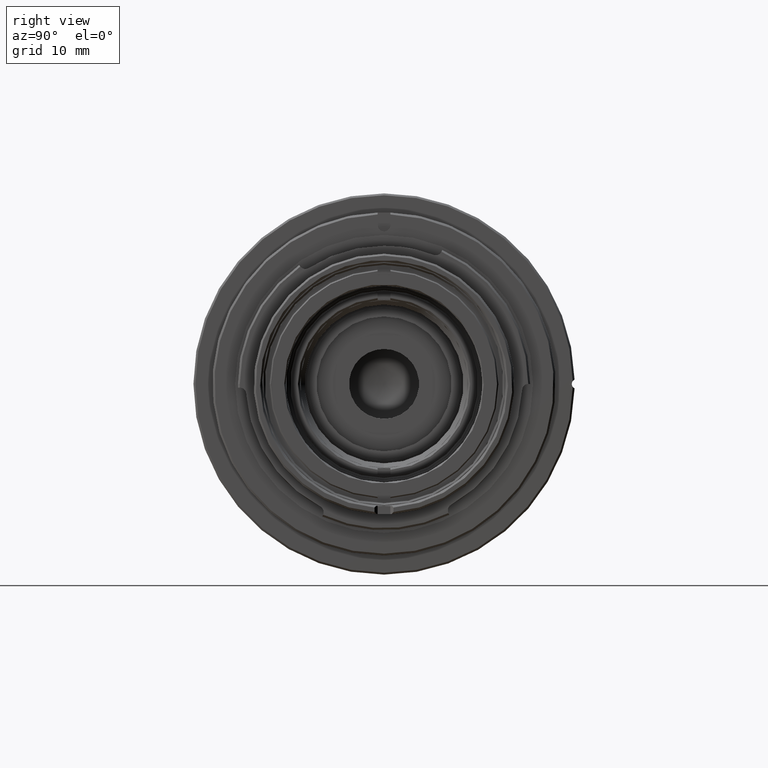
[diagram: clean part render]
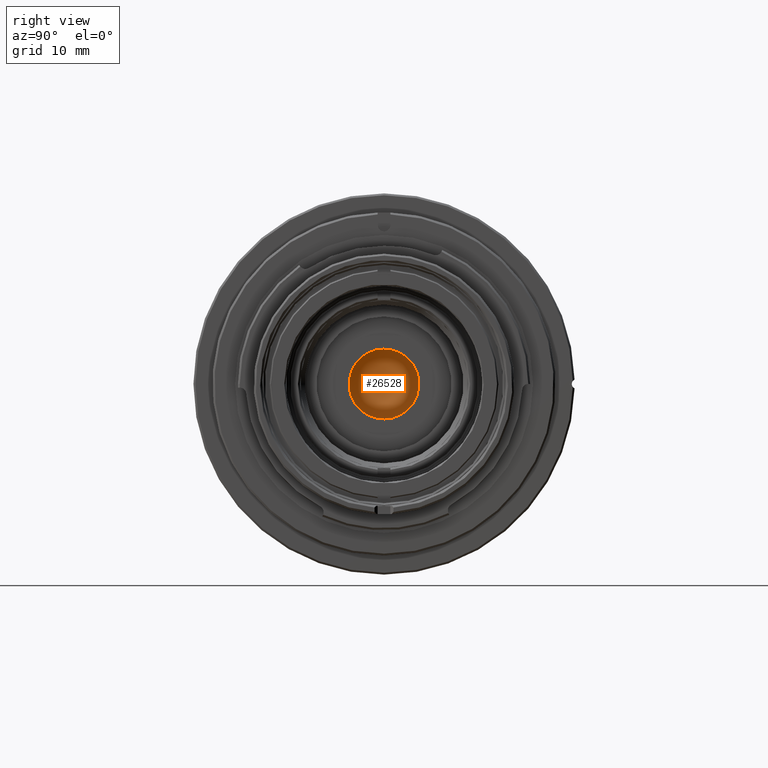
[diagram: same view with one face highlighted and labeled with its STEP entity id]
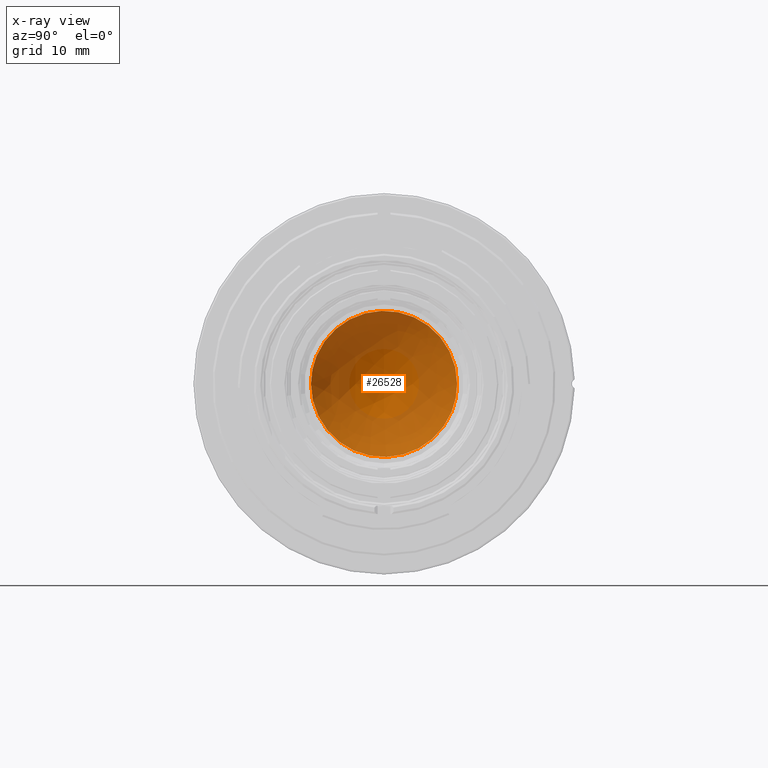
[diagram: x-ray of the same camera — body ghosted, the highlighted face saturated]
A machine part, right view. The second image highlights one B-rep face of the part: STEP entity #26528.
The next image is the same camera in x-ray: the body ghosted, the highlighted face saturated — about 77% of this face is hidden behind the body in this view.
In plain terms, the highlighted face is a freeform B-spline surface patch.
Its self-contained STEP definition (entity closure, byte-faithful):
#2940 = CARTESIAN_POINT ( 'NONE',  ( -41.20107511579377800, -11.60323881107181500, -7.670401491549866600 ) ) ;
#3155 = CARTESIAN_POINT ( 'NONE',  ( -46.20065371288437500, 11.60323881107214200, 3.315238658489042800 ) ) ;
#3164 = CARTESIAN_POINT ( 'NONE',  ( -44.80845247734862400, -9.764901558765904700, 6.085798936411786800 ) ) ;
#3358 = CARTESIAN_POINT ( 'NONE',  ( -44.80845247734861700, -2.978669706432626600, 11.13295866625508200 ) ) ;
#3383 = CARTESIAN_POINT ( 'NONE',  ( -44.80845247734860900, 4.739686864335436000, -10.48461614190675600 ) ) ;
#3579 = CARTESIAN_POINT ( 'NONE',  ( -44.80845247734858800, 0.7430977885588243600, -11.48221245707096600 ) ) ;
#3781 = CARTESIAN_POINT ( 'NONE',  ( -44.80845247734859500, -9.130745463567091500, -7.001653764536373000 ) ) ;
#3961 = CARTESIAN_POINT ( 'NONE',  ( -44.80845247734862400, 5.089168799637594300, 10.31949533574741700 ) ) ;
#3991 = CARTESIAN_POINT ( 'NONE',  ( -44.80845247734860900, -11.11541532396850900, -2.973207052530145100 ) ) ;
#7375 = CARTESIAN_POINT ( 'NONE',  ( -46.14481099012806500, 5.004728254012490200, -13.34564189343854100 ) ) ;
#7573 = CARTESIAN_POINT ( 'NONE',  ( -44.80845247734860200, -1.496915941283745400, 11.40844598959063200 ) ) ;
#7781 = CARTESIAN_POINT ( 'NONE',  ( -44.80845247734862400, -10.91137198061392000, 3.709559371525866600 ) ) ;
#7802 = CARTESIAN_POINT ( 'NONE',  ( -44.80845247734861700, 1.872532536645636500, -11.35274921225121300 ) ) ;
#7976 = CARTESIAN_POINT ( 'NONE',  ( -44.80845247734861700, -7.588748588688377900, 8.673914832636988600 ) ) ;
#8196 = CARTESIAN_POINT ( 'NONE',  ( -44.80845247734860900, 9.130745463567429000, 7.001653764536374800 ) ) ;
#8220 = CARTESIAN_POINT ( 'NONE',  ( -44.80845247734862400, 9.958291107453703700, -5.764082155747850300 ) ) ;
#8422 = CARTESIAN_POINT ( 'NONE',  ( -44.80845247734860200, -11.42546381608017500, -1.506657826387722600 ) ) ;
#8621 = CARTESIAN_POINT ( 'NONE',  ( -44.80845247734860900, -3.705574361718777100, -10.89312503859470200 ) ) ;
#9832 = ORIENTED_EDGE ( 'NONE', *, *, #38847, .T. ) ;
#12243 = CARTESIAN_POINT ( 'NONE',  ( -44.80845247734862400, 4.411244301982008200, 10.64005880782502800 ) ) ;
#12397 = VERTEX_POINT ( 'NONE', #25958 ) ;
#12443 = CARTESIAN_POINT ( 'NONE',  ( -44.80845247734861700, 10.76808924850741200, 4.054658041627607000 ) ) ;
#12468 = CARTESIAN_POINT ( 'NONE',  ( -44.80845247734861700, -4.411244301981679600, -10.64005880782503700 ) ) ;
#12626 = CARTESIAN_POINT ( 'NONE',  ( -46.20065371288437500, 11.60323881107214200, -3.315238658489038800 ) ) ;
#12830 = CARTESIAN_POINT ( 'NONE',  ( -44.80845247734859500, -0.3671815992919967900, 11.50024971761664200 ) ) ;
#13033 = CARTESIAN_POINT ( 'NONE',  ( -44.80845247734861700, 0.7576760809230455000, 11.49948961086092100 ) ) ;
#13067 = CARTESIAN_POINT ( 'NONE',  ( -44.80845247734862400, 10.31454420866638200, -5.099253145948832600 ) ) ;
#13274 = CARTESIAN_POINT ( 'NONE',  ( -44.80845247734859500, -11.20643087544266900, -2.608869418817486400 ) ) ;
#14061 = B_SPLINE_CURVE_WITH_KNOTS ( 'NONE', 3,
 ( #30445, #45019, #8422, #13274, #3991, #31452, #58717, #40583, #50255, #44813, #3781, #26822, #54472, #31857, #59492, #45620, #17286, #36304, #12468, #8621, #22567, #31239, #35484, #35880, #49666, #3579, #40976, #7802, #17084, #54887, #3383, #40779, #50060, #40175, #58918, #26616, #31651, #21961, #49469, #8220, #13067, #21762, #59112, #54078, #54284, #26431, #31038 ),
 .UNSPECIFIED., .F., .F.,
 ( 4, 2, 2, 2, 2, 2, 2, 2, 2, 1, 2, 2, 2, 2, 2, 2, 2, 2, 2, 2, 2, 2, 2, 4 ),
 ( 0.03594687407043491900, 0.03819355369983711000, 0.03931689351453820900, 0.04044023332923930800, 0.04268691295864150000, 0.04381025277334259200, 0.04493359258804369100, 0.04718027221744587600, 0.04830361203214696100, 0.04942695184684805400, 0.05055029166154914600, 0.05167363147625023100, 0.05392031110565240900, 0.05504365092035350100, 0.05616699073505459400, 0.05841367036445677100, 0.05953701017915785700, 0.06066034999385894900, 0.06290702962326112600, 0.06515370925266331100, 0.06627704906736439600, 0.06740038888206548200, 0.06964706851146765200, 0.07189374814086983700 ),
 .UNSPECIFIED. ) ;
#16467 = CARTESIAN_POINT ( 'NONE',  ( -54.84351934957655300, -5.004728254012164300, 5.768144989049122100 ) ) ;
#16869 = CARTESIAN_POINT ( 'NONE',  ( -44.80845247734860900, 10.33524695578434900, 5.099091363435657200 ) ) ;
#17059 = CARTESIAN_POINT ( 'NONE',  ( -44.80845247734861700, 11.11541532396884000, 2.973207052530148200 ) ) ;
#17084 = CARTESIAN_POINT ( 'NONE',  ( -44.80845247734862400, 2.978669706432953900, -11.13295866625508700 ) ) ;
#17263 = CARTESIAN_POINT ( 'NONE',  ( -44.80845247734865200, 1.503754232936605800, 11.42634325561703400 ) ) ;
#17286 = CARTESIAN_POINT ( 'NONE',  ( -44.80845247734860900, -5.753007191074592800, -9.964664134588682400 ) ) ;
#17468 = CARTESIAN_POINT ( 'NONE',  ( -44.80845247734862400, -3.695500496802925500, 10.91606960928534800 ) ) ;
#19837 = ORIENTED_EDGE ( 'NONE', *, *, #25264, .T. ) ;
#21127 = CARTESIAN_POINT ( 'NONE',  ( -46.20065371288437500, -11.60323881107181500, 3.315238658489042800 ) ) ;
#21523 = CARTESIAN_POINT ( 'NONE',  ( -46.14481099012807200, -5.004728254012163400, 13.34564189343853800 ) ) ;
#21529 = CARTESIAN_POINT ( 'NONE',  ( -44.80845247734861700, -5.750702967758327200, 9.966045239932050500 ) ) ;
#21724 = CARTESIAN_POINT ( 'NONE',  ( -44.80845247734862400, -5.084355458690027700, 10.32191706600309400 ) ) ;
#21762 = CARTESIAN_POINT ( 'NONE',  ( -44.80845247734863100, 10.47788335748233200, -4.754593564172933100 ) ) ;
#21937 = CARTESIAN_POINT ( 'NONE',  ( -44.80845247734861700, 9.982080396363830500, 5.759576854239103500 ) ) ;
#21961 = CARTESIAN_POINT ( 'NONE',  ( -44.80845247734860900, 9.139884176630381800, -7.019515125802862500 ) ) ;
#22567 = CARTESIAN_POINT ( 'NONE',  ( -44.80845247734862400, -2.985843278057572100, -11.11198426814783800 ) ) ;
#25264 = EDGE_CURVE ( 'NONE', #39161, #12397, #43244, .T. ) ;
#25802 = CARTESIAN_POINT ( 'NONE',  ( -41.20107511579377800, -11.60323881107181500, 7.670401491549870200 ) ) ;
#25958 = CARTESIAN_POINT ( 'NONE',  ( -44.80845247734861700, -11.49999897425633200, -1.260052562757506600E-015 ) ) ;
#26024 =( BOUNDED_SURFACE ( )  B_SPLINE_SURFACE ( 3, 3, ( 
 ( #58683, #12626, #3155, #26590 ),
 ( #7375, #58880, #39543, #58276 ),
 ( #31004, #39738, #16467, #21523 ),
 ( #2940, #44181, #21127, #25802 ) ),
 .UNSPECIFIED., .F., .F., .F. ) 
 B_SPLINE_SURFACE_WITH_KNOTS ( ( 4, 4 ),
 ( 4, 4 ),
 ( 0.0000000000000000000, 1.000000000000000000 ),
 ( 0.0000000000000000000, 1.000000000000000000 ),
 .UNSPECIFIED. ) 
 GEOMETRIC_REPRESENTATION_ITEM ( )  RATIONAL_B_SPLINE_SURFACE ( (
 ( 1.000000000000000000, 0.7712266779455876400, 0.7712266779455876400, 1.000000000000000000),
 ( 0.7728184376956983600, 0.5960181963591525400, 0.5960181963591525400, 0.7728184376956983600),
 ( 0.7728184376956983600, 0.5960181963591525400, 0.5960181963591525400, 0.7728184376956983600),
 ( 1.000000000000000000, 0.7712266779455876400, 0.7712266779455876400, 1.000000000000000000) ) ) 
 REPRESENTATION_ITEM ( '' )  SURFACE ( )  );
#26215 = CARTESIAN_POINT ( 'NONE',  ( -44.80845247734862400, -8.662779880128107700, 7.601456992880184900 ) ) ;
#26431 = CARTESIAN_POINT ( 'NONE',  ( -44.80845247734862400, 11.49999897425665900, -0.7596756894327031400 ) ) ;
#26467 = FACE_OUTER_BOUND ( 'NONE', #54124, .T. ) ;
#26528 = ADVANCED_FACE ( 'NONE', ( #26467 ), #26024, .F. ) ;
#26590 = CARTESIAN_POINT ( 'NONE',  ( -41.20107511579377800, 11.60323881107214200, 7.670401491549870200 ) ) ;
#26597 = CARTESIAN_POINT ( 'NONE',  ( -44.80845247734861700, -6.072965266795002900, 9.772892980732626400 ) ) ;
#26616 = CARTESIAN_POINT ( 'NONE',  ( -44.80845247734860900, 7.588748588688694100, -8.673914832636995700 ) ) ;
#26787 = CARTESIAN_POINT ( 'NONE',  ( -44.80845247734862400, 11.42546381608049400, 1.506657826387712000 ) ) ;
#26822 = CARTESIAN_POINT ( 'NONE',  ( -44.80845247734858800, -8.649844691848930000, -7.587743733534392000 ) ) ;
#30445 = CARTESIAN_POINT ( 'NONE',  ( -44.80845247734861700, -11.49999897425633200, -1.260052562757506600E-015 ) ) ;
#30820 = CARTESIAN_POINT ( 'NONE',  ( -44.80845247734860900, 8.396810706479181300, 7.866653003058684300 ) ) ;
#31004 = CARTESIAN_POINT ( 'NONE',  ( -46.14481099012806500, -5.004728254012163400, -13.34564189343854100 ) ) ;
#31038 = CARTESIAN_POINT ( 'NONE',  ( -44.80845247734861700, 11.49999897425665900, -1.260052562757507000E-015 ) ) ;
#31209 = CARTESIAN_POINT ( 'NONE',  ( -44.80845247734861700, 11.49999897425665900, -1.260052562757507000E-015 ) ) ;
#31239 = CARTESIAN_POINT ( 'NONE',  ( -44.80845247734860900, -2.616973146504710400, -11.20466791580466500 ) ) ;
#31452 = CARTESIAN_POINT ( 'NONE',  ( -44.80845247734862400, -10.89655380281523400, -3.695609993476281400 ) ) ;
#31651 = CARTESIAN_POINT ( 'NONE',  ( -44.80845247734862400, 8.662779880128427500, -7.601456992880193800 ) ) ;
#31857 = CARTESIAN_POINT ( 'NONE',  ( -44.80845247734860900, -7.601137461462596600, -8.662298662141459700 ) ) ;
#35450 = CARTESIAN_POINT ( 'NONE',  ( -44.80845247734861700, -9.958291107453382200, 5.764082155747835200 ) ) ;
#35484 = CARTESIAN_POINT ( 'NONE',  ( -44.80845247734861700, -1.503754232936272100, -11.42634325561703400 ) ) ;
#35658 = CARTESIAN_POINT ( 'NONE',  ( -44.80845247734862400, -10.31454420866606500, 5.099253145948820200 ) ) ;
#35855 = CARTESIAN_POINT ( 'NONE',  ( -44.80845247734861700, 9.356293689348728300, 6.697082525206049300 ) ) ;
#35880 = CARTESIAN_POINT ( 'NONE',  ( -44.80845247734860900, -0.7576760809227162100, -11.49948961086091600 ) ) ;
#36067 = CARTESIAN_POINT ( 'NONE',  ( -44.80845247734862400, -4.739686864335111800, 10.48461614190675400 ) ) ;
#36304 = CARTESIAN_POINT ( 'NONE',  ( -44.80845247734862400, -5.089168799637262100, -10.31949533574742300 ) ) ;
#38847 = EDGE_CURVE ( 'NONE', #12397, #39161, #14061, .T. ) ;
#39161 = VERTEX_POINT ( 'NONE', #47218 ) ;
#39543 = CARTESIAN_POINT ( 'NONE',  ( -54.84351934957655300, 5.004728254012490200, 5.768144989049122100 ) ) ;
#39738 = CARTESIAN_POINT ( 'NONE',  ( -54.84351934957655300, -5.004728254012164300, -5.768144989049128300 ) ) ;
#39953 = CARTESIAN_POINT ( 'NONE',  ( -44.80845247734860900, -7.007805545309777200, 9.148885702293812400 ) ) ;
#40151 = CARTESIAN_POINT ( 'NONE',  ( -44.80845247734861700, -11.12910557213403000, 2.992844638521606100 ) ) ;
#40175 = CARTESIAN_POINT ( 'NONE',  ( -44.80845247734862400, 6.072965266795336000, -9.772892980732624600 ) ) ;
#40345 = CARTESIAN_POINT ( 'NONE',  ( -44.80845247734861700, 11.20643087544298700, 2.608869418817474800 ) ) ;
#40546 = CARTESIAN_POINT ( 'NONE',  ( -44.80845247734861700, 5.753007191074926800, 9.964664134588675300 ) ) ;
#40583 = CARTESIAN_POINT ( 'NONE',  ( -44.80845247734862400, -10.33524695578402400, -5.099091363435663400 ) ) ;
#40754 = CARTESIAN_POINT ( 'NONE',  ( -44.80845247734861700, -11.49999897425633200, -1.260052562757506600E-015 ) ) ;
#40779 = CARTESIAN_POINT ( 'NONE',  ( -44.80845247734862400, 5.084355458690351900, -10.32191706600309000 ) ) ;
#40976 = CARTESIAN_POINT ( 'NONE',  ( -44.80845247734859500, 1.496915941284070500, -11.40844598959063600 ) ) ;
#43244 = B_SPLINE_CURVE_WITH_KNOTS ( 'NONE', 3,
 ( #31209, #45193, #26787, #40345, #17059, #59274, #12443, #16869, #21937, #35855, #8196, #54250, #30820, #49640, #59088, #49239, #40546, #3961, #12243, #44789, #58690, #53855, #17263, #13033, #12830, #49452, #7573, #44590, #3358, #17468, #36067, #21724, #21529, #26597, #39953, #7976, #26215, #58485, #3164, #35450, #35658, #58887, #7781, #40151, #45392, #54057, #40754 ),
 .UNSPECIFIED., .F., .F.,
 ( 4, 2, 2, 2, 2, 2, 2, 2, 2, 1, 2, 2, 2, 2, 2, 2, 2, 2, 2, 2, 2, 2, 2, 4 ),
 ( 0.0000000000000000000, 0.002246679629402188000, 0.003370019444103281600, 0.004493359258804376100, 0.006740038888206563300, 0.007863378702907658200, 0.008986718517608752200, 0.01123339814701094000, 0.01235673796171203100, 0.01348007777641312300, 0.01460341759111421500, 0.01572675740581530600, 0.01797343703521748700, 0.01909677684991858300, 0.02022011666461966800, 0.02246679629402185600, 0.02359013610872294200, 0.02471347592342403400, 0.02696015555282621100, 0.02920683518222839600, 0.03033017499692948500, 0.03145351481163057700, 0.03370019444103274800, 0.03594687407043491900 ),
 .UNSPECIFIED. ) ;
#44181 = CARTESIAN_POINT ( 'NONE',  ( -46.20065371288437500, -11.60323881107181500, -3.315238658489038800 ) ) ;
#44590 = CARTESIAN_POINT ( 'NONE',  ( -44.80845247734862400, -1.872532536645306700, 11.35274921225121300 ) ) ;
#44789 = CARTESIAN_POINT ( 'NONE',  ( -44.80845247734862400, 3.705574361719112400, 10.89312503859470400 ) ) ;
#44813 = CARTESIAN_POINT ( 'NONE',  ( -44.80845247734861700, -9.356293689348399700, -6.697082525206053700 ) ) ;
#45019 = CARTESIAN_POINT ( 'NONE',  ( -44.80845247734861700, -11.49999897425633000, -0.7596756894327058000 ) ) ;
#45193 = CARTESIAN_POINT ( 'NONE',  ( -44.80845247734861700, 11.49999897425666400, 0.7596756894327033600 ) ) ;
#45392 = CARTESIAN_POINT ( 'NONE',  ( -44.80845247734862400, -11.42383983896479000, 1.519866178225232100 ) ) ;
#45620 = CARTESIAN_POINT ( 'NONE',  ( -44.80845247734860900, -6.079623470343184600, -9.768882362445355100 ) ) ;
#47218 = CARTESIAN_POINT ( 'NONE',  ( -44.80845247734861700, 11.49999897425665900, -1.260052562757507000E-015 ) ) ;
#49239 = CARTESIAN_POINT ( 'NONE',  ( -44.80845247734861700, 6.079623470343507900, 9.768882362445353400 ) ) ;
#49452 = CARTESIAN_POINT ( 'NONE',  ( -44.80845247734858800, -0.7430977885584984000, 11.48221245707096300 ) ) ;
#49469 = CARTESIAN_POINT ( 'NONE',  ( -44.80845247734862400, 9.764901558766236900, -6.085798936411796600 ) ) ;
#49640 = CARTESIAN_POINT ( 'NONE',  ( -44.80845247734863100, 7.601137461462921700, 8.662298662141456200 ) ) ;
#49666 = CARTESIAN_POINT ( 'NONE',  ( -44.80845247734862400, 0.3671815992923235800, -11.50024971761664700 ) ) ;
#50060 = CARTESIAN_POINT ( 'NONE',  ( -44.80845247734863100, 5.750702967758655000, -9.966045239932046900 ) ) ;
#50255 = CARTESIAN_POINT ( 'NONE',  ( -44.80845247734860900, -9.982080396363496500, -5.759576854239108800 ) ) ;
#53855 = CARTESIAN_POINT ( 'NONE',  ( -44.80845247734863800, 2.616973146505044800, 11.20466791580466100 ) ) ;
#54057 = CARTESIAN_POINT ( 'NONE',  ( -44.80845247734861700, -11.49999897425633200, 0.7596756894326993600 ) ) ;
#54078 = CARTESIAN_POINT ( 'NONE',  ( -44.80845247734861700, 11.12910557213435100, -2.992844638521593200 ) ) ;
#54124 = EDGE_LOOP ( 'NONE', ( #19837, #9832 ) ) ;
#54250 = CARTESIAN_POINT ( 'NONE',  ( -44.80845247734860900, 8.649844691849267500, 7.587743733534392900 ) ) ;
#54284 = CARTESIAN_POINT ( 'NONE',  ( -44.80845247734862400, 11.42383983896511300, -1.519866178225223400 ) ) ;
#54472 = CARTESIAN_POINT ( 'NONE',  ( -44.80845247734859500, -8.396810706478854400, -7.866653003058684300 ) ) ;
#54887 = CARTESIAN_POINT ( 'NONE',  ( -44.80845247734860900, 3.695500496803248800, -10.91606960928534600 ) ) ;
#58276 = CARTESIAN_POINT ( 'NONE',  ( -46.14481099012807200, 5.004728254012490200, 13.34564189343853800 ) ) ;
#58485 = CARTESIAN_POINT ( 'NONE',  ( -44.80845247734861700, -9.139884176630060300, 7.019515125802851000 ) ) ;
#58683 = CARTESIAN_POINT ( 'NONE',  ( -41.20107511579377800, 11.60323881107214200, -7.670401491549866600 ) ) ;
#58690 = CARTESIAN_POINT ( 'NONE',  ( -44.80845247734860900, 2.985843278057903400, 11.11198426814783600 ) ) ;
#58717 = CARTESIAN_POINT ( 'NONE',  ( -44.80845247734861700, -10.76808924850709000, -4.054658041627615000 ) ) ;
#58880 = CARTESIAN_POINT ( 'NONE',  ( -54.84351934957655300, 5.004728254012490200, -5.768144989049128300 ) ) ;
#58887 = CARTESIAN_POINT ( 'NONE',  ( -44.80845247734862400, -10.47788335748201200, 4.754593564172932200 ) ) ;
#58918 = CARTESIAN_POINT ( 'NONE',  ( -44.80845247734862400, 7.007805545310112000, -9.148885702293814100 ) ) ;
#59088 = CARTESIAN_POINT ( 'NONE',  ( -44.80845247734862400, 7.022273019978745100, 9.138341699617182500 ) ) ;
#59112 = CARTESIAN_POINT ( 'NONE',  ( -44.80845247734863100, 10.91137198061423600, -3.709559371525865200 ) ) ;
#59274 = CARTESIAN_POINT ( 'NONE',  ( -44.80845247734861700, 10.89655380281556800, 3.695609993476284900 ) ) ;
#59492 = CARTESIAN_POINT ( 'NONE',  ( -44.80845247734858800, -7.022273019978420000, -9.138341699617182500 ) ) ;